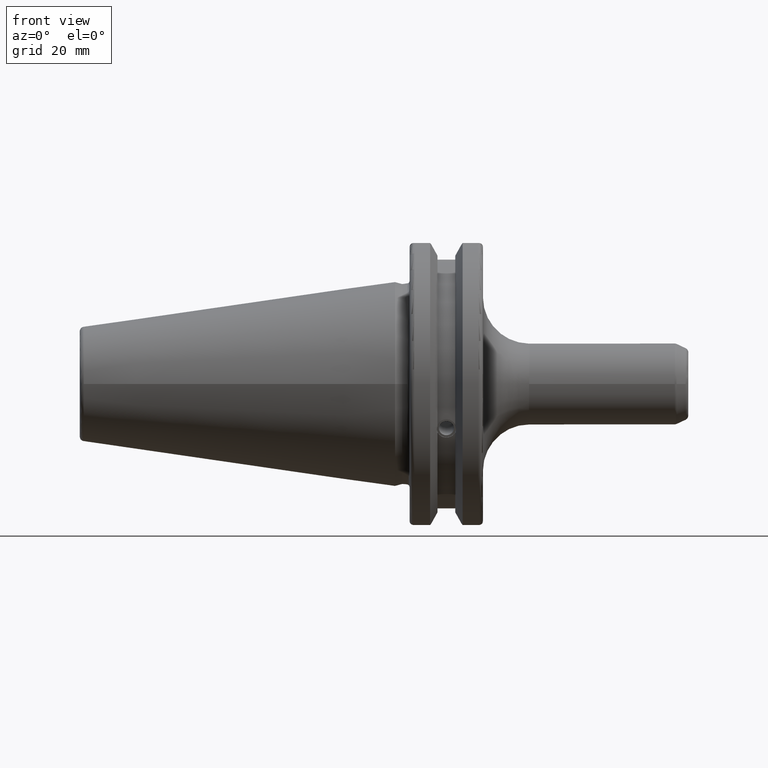
[diagram: clean part render]
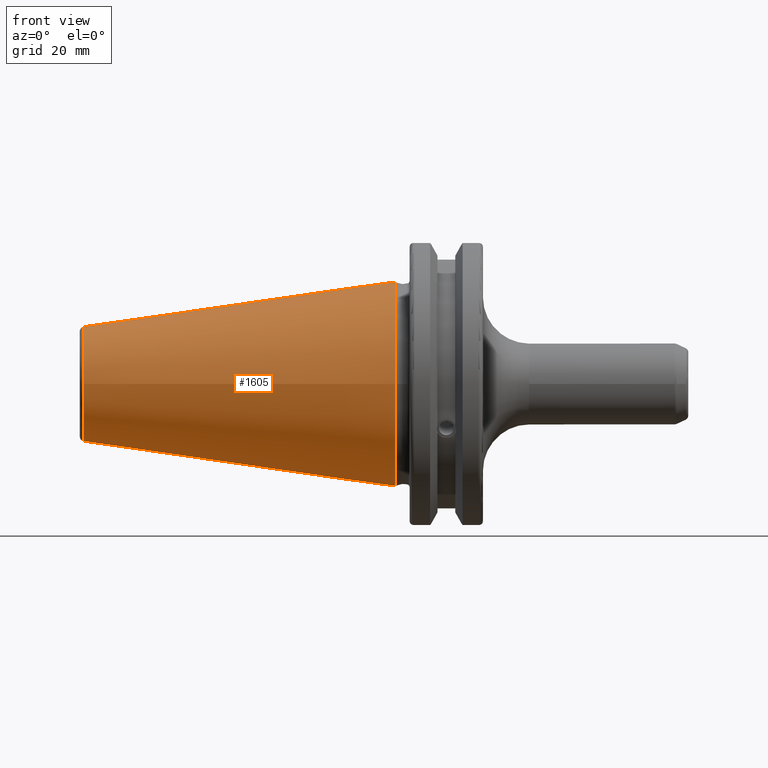
[diagram: same view with one face highlighted and labeled with its STEP entity id]
A machine part, front view. The second image highlights one B-rep face of the part: STEP entity #1605.
In plain terms, the highlighted conical surface has half-angle 8.297 deg.
Its self-contained STEP definition (entity closure, byte-faithful):
#59=CONICAL_SURFACE('',#1802,17.2484375,0.144812498238939);
#176=LINE('',#3120,#270);
#270=VECTOR('',#2213,17.2484375);
#429=FACE_OUTER_BOUND('',#532,.T.);
#532=EDGE_LOOP('',(#1403,#1404,#1405,#1406,#1407));
#625=CIRCLE('',#1796,12.3966635780937);
#626=CIRCLE('',#1797,12.3966635780937);
#630=CIRCLE('',#1803,22.225);
#788=VERTEX_POINT('',#3107);
#789=VERTEX_POINT('',#3108);
#792=VERTEX_POINT('',#3118);
#1008=EDGE_CURVE('',#788,#789,#625,.T.);
#1009=EDGE_CURVE('',#789,#788,#626,.T.);
#1013=EDGE_CURVE('',#792,#792,#630,.T.);
#1014=EDGE_CURVE('',#792,#789,#176,.T.);
#1403=ORIENTED_EDGE('',*,*,#1013,.F.);
#1404=ORIENTED_EDGE('',*,*,#1014,.T.);
#1405=ORIENTED_EDGE('',*,*,#1008,.F.);
#1406=ORIENTED_EDGE('',*,*,#1009,.F.);
#1407=ORIENTED_EDGE('',*,*,#1014,.F.);
#1605=ADVANCED_FACE('',(#429),#59,.T.);
#1796=AXIS2_PLACEMENT_3D('',#3109,#2197,#2198);
#1797=AXIS2_PLACEMENT_3D('',#3110,#2199,#2200);
#1802=AXIS2_PLACEMENT_3D('',#3117,#2209,#2210);
#1803=AXIS2_PLACEMENT_3D('',#3119,#2211,#2212);
#2197=DIRECTION('center_axis',(-1.,0.,0.));
#2198=DIRECTION('ref_axis',(0.,-1.,3.06161699786838E-17));
#2199=DIRECTION('center_axis',(-1.,0.,0.));
#2200=DIRECTION('ref_axis',(0.,-1.,3.06161699786838E-17));
#2209=DIRECTION('center_axis',(1.,0.,0.));
#2210=DIRECTION('ref_axis',(0.,1.,0.));
#2211=DIRECTION('center_axis',(1.,0.,0.));
#2212=DIRECTION('ref_axis',(0.,0.,-1.));
#2213=DIRECTION('',(-0.989532981063282,0.144306893071729,1.76724974695192E-17));
#3107=CARTESIAN_POINT('',(-67.3943068930717,-1.5181534371019E-15,12.3966635780937));
#3108=CARTESIAN_POINT('',(-67.3943068930718,-12.3966635780937,-1.5181534371019E-15));
#3109=CARTESIAN_POINT('Origin',(-67.3943068930717,0.,-1.89769179637738E-15));
#3110=CARTESIAN_POINT('Origin',(-67.3943068930717,0.,-1.89769179637738E-15));
#3117=CARTESIAN_POINT('Origin',(-34.125,0.,0.));
#3118=CARTESIAN_POINT('',(0.,-22.225,-2.72177751110499E-15));
#3119=CARTESIAN_POINT('Origin',(0.,0.,0.));
#3120=CARTESIAN_POINT('',(-34.125,-17.2484375,-2.11232437746682E-15));